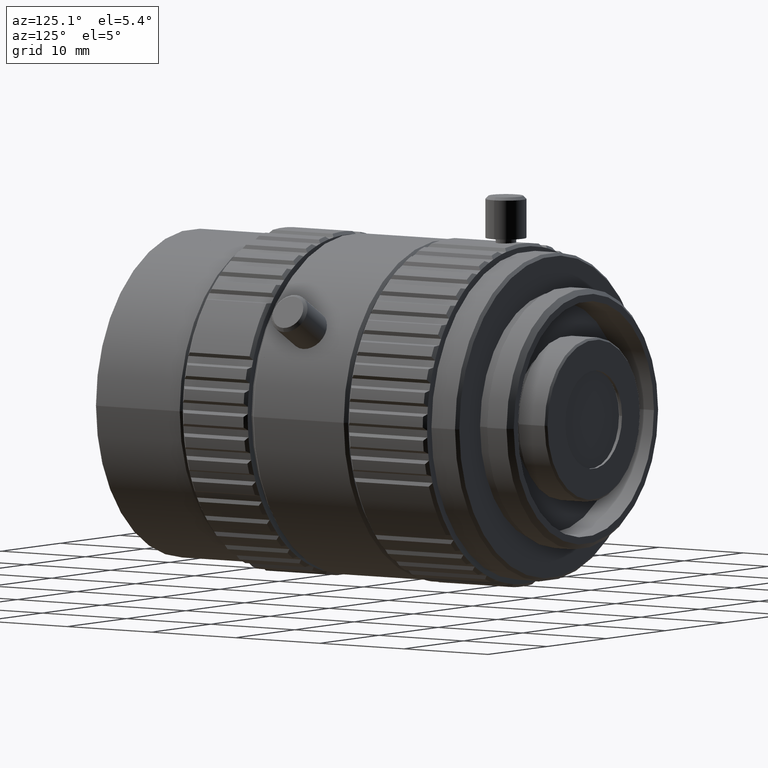
[diagram: clean part render]
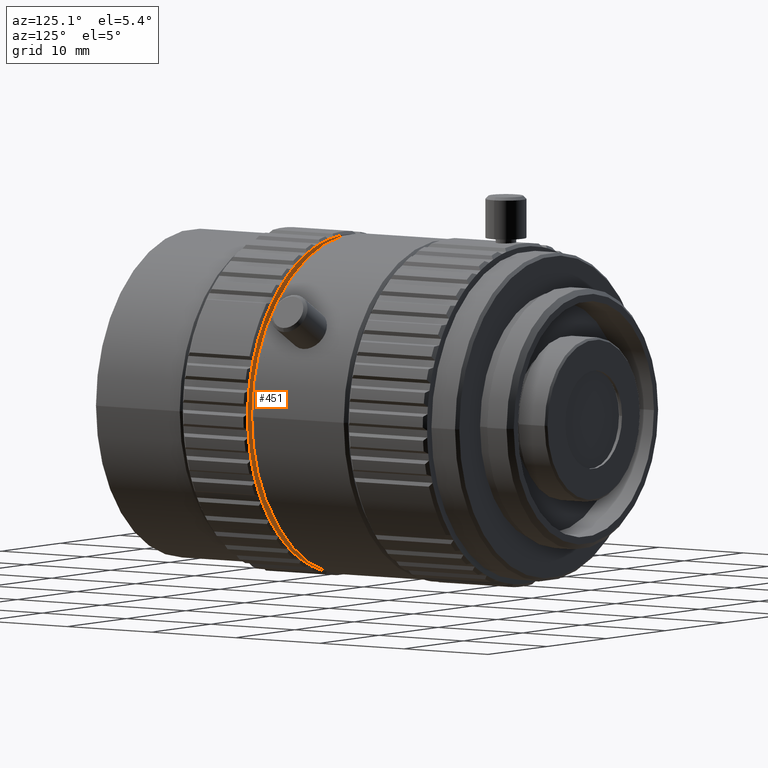
[diagram: same view with one face highlighted and labeled with its STEP entity id]
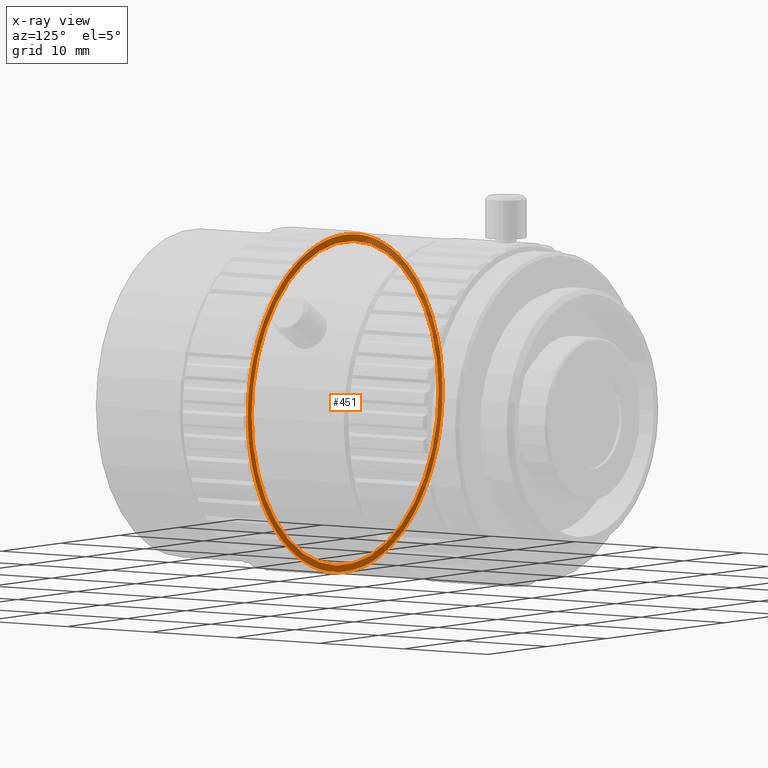
[diagram: x-ray of the same camera — body ghosted, the highlighted face saturated]
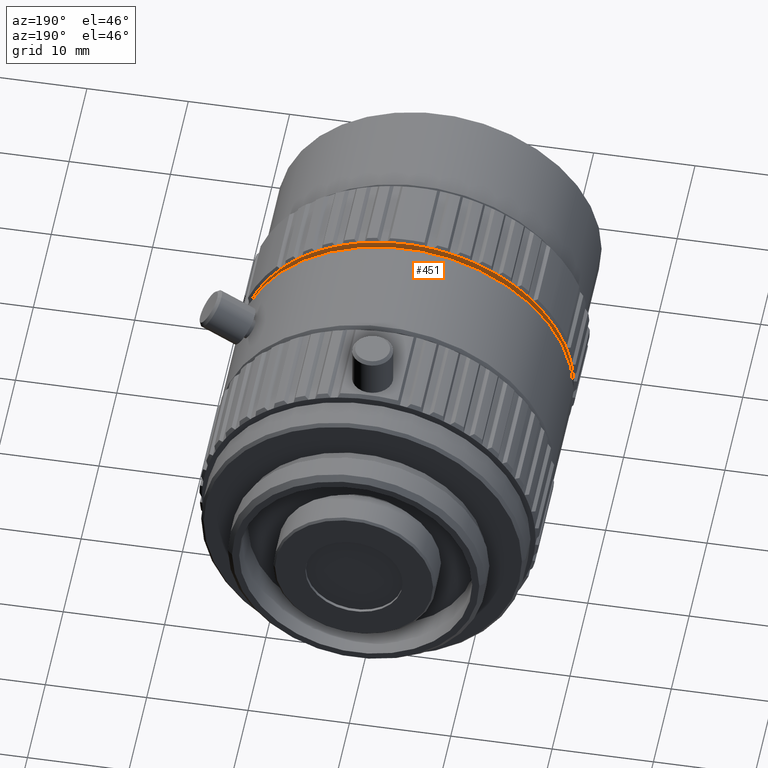
[diagram: same view with one face highlighted and labeled with its STEP entity id]
A machine part, auxiliary view. The second image highlights one B-rep face of the part: STEP entity #451.
The next image is the same camera in x-ray: the body ghosted, the highlighted face saturated — about 46% of this face is hidden behind the body in this view.
A second angle (auxiliary view) of the same face is appended — the face is thin or edge-on in the first view.
In plain terms, the highlighted planar face has unit normal (0, 1, 0).
Its self-contained STEP definition (entity closure, byte-faithful):
#451=ADVANCED_FACE('0:10863',(#1921,#1922),#1923,.T.);
#1921=FACE_OUTER_BOUND('',#4252,.T.);
#1922=FACE_BOUND('',#4253,.T.);
#1923=PLANE('',#4254);
#4252=EDGE_LOOP('',(#8254,#8255,#8256,#8257,#8258,#8259,#8260,#8261,#8262,#8263,#8264,#8265,#8266,#8267,#8268,#8269,#8270,#8271,#8272,#8273,#8274,#8275,#8276,#8277,#8278,#8279,#8280,#8281,#8282,#8283,#8284,#8285,#8286,#8287,#8288,#8289,#8290,#8291,#8292,#8293,#8294,#8295,#8296,#8297,#8298,#8299,#8300,#8301,#8302,#8303,#8304,#8305,#8306,#8307,#8308,#8309,#8310,#8311,#8312,#8313,#8314,#8315,#8316,#8317,#8318,#8319,#8320,#8321,#8322,#8323,#8324,#8325,#8326,#8327,#8328,#8329,#8330,#8331));
#4253=EDGE_LOOP('',(#8332,#8333));
#4254=AXIS2_PLACEMENT_3D('',#8334,#8335,#8336);
#8254=ORIENTED_EDGE('',*,*,#15569,.F.);
#8255=ORIENTED_EDGE('',*,*,#14572,.F.);
#8256=ORIENTED_EDGE('',*,*,#14782,.F.);
#8257=ORIENTED_EDGE('',*,*,#15570,.F.);
#8258=ORIENTED_EDGE('',*,*,#15501,.F.);
#8259=ORIENTED_EDGE('',*,*,#15571,.F.);
#8260=ORIENTED_EDGE('',*,*,#15498,.F.);
#8261=ORIENTED_EDGE('',*,*,#15572,.F.);
#8262=ORIENTED_EDGE('',*,*,#15495,.F.);
#8263=ORIENTED_EDGE('',*,*,#15573,.F.);
#8264=ORIENTED_EDGE('',*,*,#15492,.F.);
#8265=ORIENTED_EDGE('',*,*,#15574,.F.);
#8266=ORIENTED_EDGE('',*,*,#15489,.F.);
#8267=ORIENTED_EDGE('',*,*,#15575,.F.);
#8268=ORIENTED_EDGE('',*,*,#15486,.F.);
#8269=ORIENTED_EDGE('',*,*,#15576,.F.);
#8270=ORIENTED_EDGE('',*,*,#15483,.F.);
#8271=ORIENTED_EDGE('',*,*,#15577,.F.);
#8272=ORIENTED_EDGE('',*,*,#15480,.F.);
#8273=ORIENTED_EDGE('',*,*,#15578,.F.);
#8274=ORIENTED_EDGE('',*,*,#15477,.F.);
#8275=ORIENTED_EDGE('',*,*,#15579,.F.);
#8276=ORIENTED_EDGE('',*,*,#15475,.F.);
#8277=ORIENTED_EDGE('',*,*,#15580,.F.);
#8278=ORIENTED_EDGE('',*,*,#15471,.F.);
#8279=ORIENTED_EDGE('',*,*,#15581,.F.);
#8280=ORIENTED_EDGE('',*,*,#15468,.F.);
#8281=ORIENTED_EDGE('',*,*,#15582,.F.);
#8282=ORIENTED_EDGE('',*,*,#15465,.F.);
#8283=ORIENTED_EDGE('',*,*,#15583,.F.);
#8284=ORIENTED_EDGE('',*,*,#15462,.F.);
#8285=ORIENTED_EDGE('',*,*,#15584,.F.);
#8286=ORIENTED_EDGE('',*,*,#15459,.F.);
#8287=ORIENTED_EDGE('',*,*,#15585,.F.);
#8288=ORIENTED_EDGE('',*,*,#15456,.F.);
#8289=ORIENTED_EDGE('',*,*,#15586,.F.);
#8290=ORIENTED_EDGE('',*,*,#15453,.F.);
#8291=ORIENTED_EDGE('',*,*,#15587,.F.);
#8292=ORIENTED_EDGE('',*,*,#15450,.F.);
#8293=ORIENTED_EDGE('',*,*,#15588,.F.);
#8294=ORIENTED_EDGE('',*,*,#15447,.F.);
#8295=ORIENTED_EDGE('',*,*,#15589,.F.);
#8296=ORIENTED_EDGE('',*,*,#15443,.F.);
#8297=ORIENTED_EDGE('',*,*,#14544,.F.);
#8298=ORIENTED_EDGE('',*,*,#15590,.F.);
#8299=ORIENTED_EDGE('',*,*,#15441,.F.);
#8300=ORIENTED_EDGE('',*,*,#15591,.F.);
#8301=ORIENTED_EDGE('',*,*,#15438,.F.);
#8302=ORIENTED_EDGE('',*,*,#15592,.F.);
#8303=ORIENTED_EDGE('',*,*,#15436,.F.);
#8304=ORIENTED_EDGE('',*,*,#15593,.F.);
#8305=ORIENTED_EDGE('',*,*,#15432,.F.);
#8306=ORIENTED_EDGE('',*,*,#15594,.F.);
#8307=ORIENTED_EDGE('',*,*,#15429,.F.);
#8308=ORIENTED_EDGE('',*,*,#15595,.F.);
#8309=ORIENTED_EDGE('',*,*,#15426,.F.);
#8310=ORIENTED_EDGE('',*,*,#15596,.F.);
#8311=ORIENTED_EDGE('',*,*,#15423,.F.);
#8312=ORIENTED_EDGE('',*,*,#15597,.F.);
#8313=ORIENTED_EDGE('',*,*,#15420,.F.);
#8314=ORIENTED_EDGE('',*,*,#15598,.F.);
#8315=ORIENTED_EDGE('',*,*,#15417,.F.);
#8316=ORIENTED_EDGE('',*,*,#15599,.F.);
#8317=ORIENTED_EDGE('',*,*,#15414,.F.);
#8318=ORIENTED_EDGE('',*,*,#15600,.F.);
#8319=ORIENTED_EDGE('',*,*,#15567,.F.);
#8320=ORIENTED_EDGE('',*,*,#15601,.F.);
#8321=ORIENTED_EDGE('',*,*,#15519,.F.);
#8322=ORIENTED_EDGE('',*,*,#15602,.F.);
#8323=ORIENTED_EDGE('',*,*,#15516,.F.);
#8324=ORIENTED_EDGE('',*,*,#15603,.F.);
#8325=ORIENTED_EDGE('',*,*,#15513,.F.);
#8326=ORIENTED_EDGE('',*,*,#15604,.F.);
#8327=ORIENTED_EDGE('',*,*,#15511,.F.);
#8328=ORIENTED_EDGE('',*,*,#15605,.F.);
#8329=ORIENTED_EDGE('',*,*,#15507,.F.);
#8330=ORIENTED_EDGE('',*,*,#15606,.F.);
#8331=ORIENTED_EDGE('',*,*,#15504,.F.);
#8332=ORIENTED_EDGE('',*,*,#14612,.T.);
#8333=ORIENTED_EDGE('',*,*,#14763,.T.);
#8334=CARTESIAN_POINT('',(-1.50626581520152E-18,-0.042126,0.01645));
#8335=DIRECTION('',(2.29561756065156E-49,1.0,3.74915180455535E-33));
#8336=DIRECTION('',(0.0,3.74915180455535E-33,-1.0));
#14544=EDGE_CURVE('0:13830',#17139,#17137,#17141,.T.);
#14572=EDGE_CURVE('0:11799',#17194,#17197,#17198,.T.);
#14612=EDGE_CURVE('0:11754',#17265,#17269,#17271,.T.);
#14763=EDGE_CURVE('0:11754',#17269,#17265,#17516,.T.);
#14782=EDGE_CURVE('0:11799',#17536,#17194,#17538,.T.);
#15414=EDGE_CURVE('0:13740',#18679,#18681,#18682,.T.);
#15417=EDGE_CURVE('0:13749',#18684,#18686,#18687,.T.);
#15420=EDGE_CURVE('0:13758',#18689,#18691,#18692,.T.);
#15423=EDGE_CURVE('0:13767',#18694,#18696,#18697,.T.);
#15426=EDGE_CURVE('0:13776',#18699,#18701,#18702,.T.);
#15429=EDGE_CURVE('0:13785',#18704,#18706,#18707,.T.);
#15432=EDGE_CURVE('0:13794',#18709,#18711,#18712,.T.);
#15436=EDGE_CURVE('0:13806',#18716,#18714,#18718,.T.);
#15438=EDGE_CURVE('0:13812',#18719,#18721,#18722,.T.);
#15441=EDGE_CURVE('0:13821',#18724,#18726,#18727,.T.);
#15443=EDGE_CURVE('0:13830',#17137,#18729,#18730,.T.);
#15447=EDGE_CURVE('0:13839',#18733,#18735,#18736,.T.);
#15450=EDGE_CURVE('0:13848',#18738,#18740,#18741,.T.);
#15453=EDGE_CURVE('0:13857',#18743,#18745,#18746,.T.);
#15456=EDGE_CURVE('0:13866',#18748,#18750,#18751,.T.);
#15459=EDGE_CURVE('0:13875',#18753,#18755,#18756,.T.);
#15462=EDGE_CURVE('0:13884',#18758,#18760,#18761,.T.);
#15465=EDGE_CURVE('0:13893',#18763,#18765,#18766,.T.);
#15468=EDGE_CURVE('0:13902',#18768,#18770,#18771,.T.);
#15471=EDGE_CURVE('0:13911',#18773,#18775,#18776,.T.);
#15475=EDGE_CURVE('0:13923',#18780,#18778,#18782,.T.);
#15477=EDGE_CURVE('0:13929',#18783,#18785,#18786,.T.);
#15480=EDGE_CURVE('0:13938',#18788,#18790,#18791,.T.);
#15483=EDGE_CURVE('0:13947',#18793,#18795,#18796,.T.);
#15486=EDGE_CURVE('0:13956',#18798,#18800,#18801,.T.);
#15489=EDGE_CURVE('0:13965',#18803,#18805,#18806,.T.);
#15492=EDGE_CURVE('0:13974',#18808,#18810,#18811,.T.);
#15495=EDGE_CURVE('0:13983',#18813,#18815,#18816,.T.);
#15498=EDGE_CURVE('0:13992',#18818,#18820,#18821,.T.);
#15501=EDGE_CURVE('0:14001',#18823,#18825,#18826,.T.);
#15504=EDGE_CURVE('0:14010',#18828,#18830,#18831,.T.);
#15507=EDGE_CURVE('0:14019',#18833,#18835,#18836,.T.);
#15511=EDGE_CURVE('0:14031',#18840,#18838,#18842,.T.);
#15513=EDGE_CURVE('0:14037',#18843,#18845,#18846,.T.);
#15516=EDGE_CURVE('0:14046',#18848,#18850,#18851,.T.);
#15519=EDGE_CURVE('0:14055',#18853,#18855,#18856,.T.);
#15567=EDGE_CURVE('0:14199',#18909,#18911,#18912,.T.);
#15569=EDGE_CURVE('0:14205',#17197,#18828,#18914,.T.);
#15570=EDGE_CURVE('0:14208',#18825,#17536,#18915,.T.);
#15571=EDGE_CURVE('0:14211',#18820,#18823,#18916,.T.);
#15572=EDGE_CURVE('0:14214',#18815,#18818,#18917,.T.);
#15573=EDGE_CURVE('0:14217',#18810,#18813,#18918,.T.);
#15574=EDGE_CURVE('0:14220',#18805,#18808,#18919,.T.);
#15575=EDGE_CURVE('0:14223',#18800,#18803,#18920,.T.);
#15576=EDGE_CURVE('0:14226',#18795,#18798,#18921,.T.);
#15577=EDGE_CURVE('0:14229',#18790,#18793,#18922,.T.);
#15578=EDGE_CURVE('0:14232',#18785,#18788,#18923,.T.);
#15579=EDGE_CURVE('0:14235',#18778,#18783,#18924,.T.);
#15580=EDGE_CURVE('0:14238',#18775,#18780,#18925,.T.);
#15581=EDGE_CURVE('0:14241',#18770,#18773,#18926,.T.);
#15582=EDGE_CURVE('0:14244',#18765,#18768,#18927,.T.);
#15583=EDGE_CURVE('0:14247',#18760,#18763,#18928,.T.);
#15584=EDGE_CURVE('0:14250',#18755,#18758,#18929,.T.);
#15585=EDGE_CURVE('0:14253',#18750,#18753,#18930,.T.);
#15586=EDGE_CURVE('0:14256',#18745,#18748,#18931,.T.);
#15587=EDGE_CURVE('0:14259',#18740,#18743,#18932,.T.);
#15588=EDGE_CURVE('0:14262',#18735,#18738,#18933,.T.);
#15589=EDGE_CURVE('0:14265',#18729,#18733,#18934,.T.);
#15590=EDGE_CURVE('0:14268',#18726,#17139,#18935,.T.);
#15591=EDGE_CURVE('0:14271',#18721,#18724,#18936,.T.);
#15592=EDGE_CURVE('0:14274',#18714,#18719,#18937,.T.);
#15593=EDGE_CURVE('0:14277',#18711,#18716,#18938,.T.);
#15594=EDGE_CURVE('0:14280',#18706,#18709,#18939,.T.);
#15595=EDGE_CURVE('0:14283',#18701,#18704,#18940,.T.);
#15596=EDGE_CURVE('0:14286',#18696,#18699,#18941,.T.);
#15597=EDGE_CURVE('0:14289',#18691,#18694,#18942,.T.);
#15598=EDGE_CURVE('0:14292',#18686,#18689,#18943,.T.);
#15599=EDGE_CURVE('0:14295',#18681,#18684,#18944,.T.);
#15600=EDGE_CURVE('0:14298',#18911,#18679,#18945,.T.);
#15601=EDGE_CURVE('0:14301',#18855,#18909,#18946,.T.);
#15602=EDGE_CURVE('0:14304',#18850,#18853,#18947,.T.);
#15603=EDGE_CURVE('0:14307',#18845,#18848,#18948,.T.);
#15604=EDGE_CURVE('0:14310',#18838,#18843,#18949,.T.);
#15605=EDGE_CURVE('0:14313',#18835,#18840,#18950,.T.);
#15606=EDGE_CURVE('0:14316',#18830,#18833,#18951,.T.);
#17137=VERTEX_POINT('',#21233);
#17139=VERTEX_POINT('NONE',#21236);
#17141=CIRCLE('',#21238,0.01645);
#17194=VERTEX_POINT('',#21303);
#17197=VERTEX_POINT('NONE',#21307);
#17198=CIRCLE('',#21308,0.01645);
#17265=VERTEX_POINT('NONE',#21395);
#17269=VERTEX_POINT('',#21400);
#17271=CIRCLE('',#21403,0.0158);
#17516=CIRCLE('',#21830,0.0158);
#17536=VERTEX_POINT('NONE',#21853);
#17538=CIRCLE('',#21855,0.01645);
#18679=VERTEX_POINT('NONE',#23149);
#18681=VERTEX_POINT('NONE',#23151);
#18682=CIRCLE('',#23152,0.01645);
#18684=VERTEX_POINT('NONE',#23154);
#18686=VERTEX_POINT('NONE',#23156);
#18687=CIRCLE('',#23157,0.01645);
#18689=VERTEX_POINT('NONE',#23159);
#18691=VERTEX_POINT('NONE',#23161);
#18692=CIRCLE('',#23162,0.01645);
#18694=VERTEX_POINT('NONE',#23164);
#18696=VERTEX_POINT('NONE',#23166);
#18697=CIRCLE('',#23167,0.01645);
#18699=VERTEX_POINT('NONE',#23169);
#18701=VERTEX_POINT('NONE',#23171);
#18702=CIRCLE('',#23172,0.01645);
#18704=VERTEX_POINT('NONE',#23174);
#18706=VERTEX_POINT('NONE',#23176);
#18707=CIRCLE('',#23177,0.01645);
#18709=VERTEX_POINT('NONE',#23179);
#18711=VERTEX_POINT('NONE',#23181);
#18712=CIRCLE('',#23182,0.01645);
#18714=VERTEX_POINT('NONE',#23184);
#18716=VERTEX_POINT('NONE',#23186);
#18718=CIRCLE('',#23188,0.01645);
#18719=VERTEX_POINT('NONE',#23189);
#18721=VERTEX_POINT('NONE',#23191);
#18722=CIRCLE('',#23192,0.01645);
#18724=VERTEX_POINT('NONE',#23194);
#18726=VERTEX_POINT('NONE',#23196);
#18727=CIRCLE('',#23197,0.01645);
#18729=VERTEX_POINT('NONE',#23199);
#18730=CIRCLE('',#23200,0.01645);
#18733=VERTEX_POINT('NONE',#23203);
#18735=VERTEX_POINT('NONE',#23205);
#18736=CIRCLE('',#23206,0.01645);
#18738=VERTEX_POINT('NONE',#23208);
#18740=VERTEX_POINT('NONE',#23210);
#18741=CIRCLE('',#23211,0.01645);
#18743=VERTEX_POINT('NONE',#23213);
#18745=VERTEX_POINT('NONE',#23215);
#18746=CIRCLE('',#23216,0.01645);
#18748=VERTEX_POINT('NONE',#23218);
#18750=VERTEX_POINT('NONE',#23220);
#18751=CIRCLE('',#23221,0.01645);
#18753=VERTEX_POINT('NONE',#23223);
#18755=VERTEX_POINT('NONE',#23225);
#18756=CIRCLE('',#23226,0.01645);
#18758=VERTEX_POINT('NONE',#23228);
#18760=VERTEX_POINT('NONE',#23230);
#18761=CIRCLE('',#23231,0.01645);
#18763=VERTEX_POINT('NONE',#23233);
#18765=VERTEX_POINT('NONE',#23235);
#18766=CIRCLE('',#23236,0.01645);
#18768=VERTEX_POINT('NONE',#23238);
#18770=VERTEX_POINT('NONE',#23240);
#18771=CIRCLE('',#23241,0.01645);
#18773=VERTEX_POINT('NONE',#23243);
#18775=VERTEX_POINT('NONE',#23245);
#18776=CIRCLE('',#23246,0.01645);
#18778=VERTEX_POINT('NONE',#23248);
#18780=VERTEX_POINT('NONE',#23250);
#18782=CIRCLE('',#23252,0.01645);
#18783=VERTEX_POINT('NONE',#23253);
#18785=VERTEX_POINT('NONE',#23255);
#18786=CIRCLE('',#23256,0.01645);
#18788=VERTEX_POINT('NONE',#23258);
#18790=VERTEX_POINT('NONE',#23260);
#18791=CIRCLE('',#23261,0.01645);
#18793=VERTEX_POINT('NONE',#23263);
#18795=VERTEX_POINT('NONE',#23265);
#18796=CIRCLE('',#23266,0.01645);
#18798=VERTEX_POINT('NONE',#23268);
#18800=VERTEX_POINT('NONE',#23270);
#18801=CIRCLE('',#23271,0.01645);
#18803=VERTEX_POINT('NONE',#23273);
#18805=VERTEX_POINT('NONE',#23275);
#18806=CIRCLE('',#23276,0.01645);
#18808=VERTEX_POINT('NONE',#23278);
#18810=VERTEX_POINT('NONE',#23280);
#18811=CIRCLE('',#23281,0.01645);
#18813=VERTEX_POINT('NONE',#23283);
#18815=VERTEX_POINT('NONE',#23285);
#18816=CIRCLE('',#23286,0.01645);
#18818=VERTEX_POINT('NONE',#23288);
#18820=VERTEX_POINT('NONE',#23290);
#18821=CIRCLE('',#23291,0.01645);
#18823=VERTEX_POINT('NONE',#23293);
#18825=VERTEX_POINT('NONE',#23295);
#18826=CIRCLE('',#23296,0.01645);
#18828=VERTEX_POINT('NONE',#23298);
#18830=VERTEX_POINT('NONE',#23300);
#18831=CIRCLE('',#23301,0.01645);
#18833=VERTEX_POINT('NONE',#23303);
#18835=VERTEX_POINT('NONE',#23305);
#18836=CIRCLE('',#23306,0.01645);
#18838=VERTEX_POINT('NONE',#23308);
#18840=VERTEX_POINT('NONE',#23310);
#18842=CIRCLE('',#23312,0.01645);
#18843=VERTEX_POINT('NONE',#23313);
#18845=VERTEX_POINT('NONE',#23315);
#18846=CIRCLE('',#23316,0.01645);
#18848=VERTEX_POINT('NONE',#23318);
#18850=VERTEX_POINT('NONE',#23320);
#18851=CIRCLE('',#23321,0.01645);
#18853=VERTEX_POINT('NONE',#23323);
#18855=VERTEX_POINT('NONE',#23325);
#18856=CIRCLE('',#23326,0.01645);
#18909=VERTEX_POINT('NONE',#23381);
#18911=VERTEX_POINT('NONE',#23383);
#18912=CIRCLE('',#23384,0.01645);
#18914=CIRCLE('',#23386,0.01645);
#18915=CIRCLE('',#23387,0.01645);
#18916=CIRCLE('',#23388,0.01645);
#18917=CIRCLE('',#23389,0.01645);
#18918=CIRCLE('',#23390,0.01645);
#18919=CIRCLE('',#23391,0.01645);
#18920=CIRCLE('',#23392,0.01645);
#18921=CIRCLE('',#23393,0.01645);
#18922=CIRCLE('',#23394,0.01645);
#18923=CIRCLE('',#23395,0.01645);
#18924=CIRCLE('',#23396,0.01645);
#18925=CIRCLE('',#23397,0.01645);
#18926=CIRCLE('',#23398,0.01645);
#18927=CIRCLE('',#23399,0.01645);
#18928=CIRCLE('',#23400,0.01645);
#18929=CIRCLE('',#23401,0.01645);
#18930=CIRCLE('',#23402,0.01645);
#18931=CIRCLE('',#23403,0.01645);
#18932=CIRCLE('',#23404,0.01645);
#18933=CIRCLE('',#23405,0.01645);
#18934=CIRCLE('',#23406,0.01645);
#18935=CIRCLE('',#23407,0.01645);
#18936=CIRCLE('',#23408,0.01645);
#18937=CIRCLE('',#23409,0.01645);
#18938=CIRCLE('',#23410,0.01645);
#18939=CIRCLE('',#23411,0.01645);
#18940=CIRCLE('',#23412,0.01645);
#18941=CIRCLE('',#23413,0.01645);
#18942=CIRCLE('',#23414,0.01645);
#18943=CIRCLE('',#23415,0.01645);
#18944=CIRCLE('',#23416,0.01645);
#18945=CIRCLE('',#23417,0.01645);
#18946=CIRCLE('',#23418,0.01645);
#18947=CIRCLE('',#23419,0.01645);
#18948=CIRCLE('',#23420,0.01645);
#18949=CIRCLE('',#23421,0.01645);
#18950=CIRCLE('',#23422,0.01645);
#18951=CIRCLE('',#23423,0.01645);
#21233=CARTESIAN_POINT('',(-0.01645,-0.042126,-5.02921221614859E-17));
#21236=CARTESIAN_POINT('',(-0.0164484723710231,-0.042126,0.000224179971655247));
#21238=AXIS2_PLACEMENT_3D('',#26381,#26382,#26383);
#21303=CARTESIAN_POINT('',(0.01645,-0.042126,-4.62024841501512E-17));
#21307=CARTESIAN_POINT('',(0.0164484707350975,-0.042126,0.000224299970218646));
#21308=AXIS2_PLACEMENT_3D('',#26445,#26446,#26447);
#21395=CARTESIAN_POINT('',(0.0158,-0.042126,-4.8216096913689E-17));
#21400=CARTESIAN_POINT('',(-0.0158,-0.042126,-5.01510388563418E-17));
#21403=AXIS2_PLACEMENT_3D('',#26521,#26522,#26523);
#21830=AXIS2_PLACEMENT_3D('',#26850,#26851,#26852);
#21853=CARTESIAN_POINT('',(0.0163927667147179,-0.042126,-0.0013710213115917));
#21855=AXIS2_PLACEMENT_3D('',#26904,#26905,#26906);
#23149=CARTESIAN_POINT('',(0.00419676648413038,-0.042126,0.0159056484016742));
#23151=CARTESIAN_POINT('',(0.00263535461888581,-0.042126,0.0162375307861977));
#23152=AXIS2_PLACEMENT_3D('',#28497,#28498,#28499);
#23154=CARTESIAN_POINT('',(0.00194228543035764,-0.042126,0.01633493273041));
#23156=CARTESIAN_POINT('',(-0.00194240460055556,-0.042126,0.0163349185601809));
#23157=AXIS2_PLACEMENT_3D('',#28506,#28507,#28508);
#23159=CARTESIAN_POINT('',(-0.00263547307847692,-0.042126,0.016237511559738));
#23161=CARTESIAN_POINT('',(-0.00419688252245741,-0.042126,0.0159056177840627));
#23162=AXIS2_PLACEMENT_3D('',#28515,#28516,#28517);
#23164=CARTESIAN_POINT('',(-0.00486964967128738,-0.042126,0.0157127022526022));
#23166=CARTESIAN_POINT('',(-0.0063696728999427,-0.042126,0.0151667322501498));
#23167=AXIS2_PLACEMENT_3D('',#28524,#28525,#28526);
#23169=CARTESIAN_POINT('',(-0.00700904407239063,-0.042126,0.0148820630690535));
#23171=CARTESIAN_POINT('',(-0.00841848483982617,-0.042126,0.0141326435248901));
#23172=AXIS2_PLACEMENT_3D('',#28533,#28534,#28535);
#23174=CARTESIAN_POINT('',(-0.00901201540329425,-0.042126,0.0137617614559615));
#23176=CARTESIAN_POINT('',(-0.010303440548187,-0.042126,0.012823478969062));
#23177=AXIS2_PLACEMENT_3D('',#28542,#28543,#28544);
#23179=CARTESIAN_POINT('',(-0.0108395781053884,-0.042126,0.0123736028099008));
#23181=CARTESIAN_POINT('',(-0.0119878515062672,-0.042126,0.0112647199815924));
#23182=AXIS2_PLACEMENT_3D('',#28551,#28552,#28553);
#23184=CARTESIAN_POINT('',(-0.0155332216809462,-0.042126,0.00541493529144924));
#23186=CARTESIAN_POINT('',(-0.0124561607494984,-0.042126,0.0107446060599101));
#23188=AXIS2_PLACEMENT_3D('',#28563,#28564,#28565);
#23189=CARTESIAN_POINT('',(-0.01574949407235,-0.042126,0.0047493090513265));
#23191=CARTESIAN_POINT('',(-0.0161356667713344,-0.042126,0.00320043088418662));
#23192=AXIS2_PLACEMENT_3D('',#28569,#28570,#28571);
#23194=CARTESIAN_POINT('',(-0.0162571971467737,-0.042126,0.00251118317351282));
#23196=CARTESIAN_POINT('',(-0.0164240494620675,-0.042126,0.00092363373019947));
#23197=AXIS2_PLACEMENT_3D('',#28578,#28579,#28580);
#23199=CARTESIAN_POINT('',(-0.0163927567121007,-0.042126,-0.00137114090372822));
#23200=AXIS2_PLACEMENT_3D('',#28584,#28585,#28586);
#23203=CARTESIAN_POINT('',(-0.0163195967904305,-0.042126,-0.00206718663834968));
#23205=CARTESIAN_POINT('',(-0.0160423975992173,-0.042126,-0.0036392278396145));
#23206=AXIS2_PLACEMENT_3D('',#28596,#28597,#28598);
#23208=CARTESIAN_POINT('',(-0.0158730788215784,-0.042126,-0.00431831781182905));
#23210=CARTESIAN_POINT('',(-0.015379791465022,-0.042126,-0.00583648134516299));
#23211=AXIS2_PLACEMENT_3D('',#28605,#28606,#28607);
#23213=CARTESIAN_POINT('',(-0.0151176094288238,-0.042126,-0.00648539784111487));
#23215=CARTESIAN_POINT('',(-0.0144178351842135,-0.042126,-0.00792013438022702));
#23216=AXIS2_PLACEMENT_3D('',#28614,#28615,#28616);
#23218=CARTESIAN_POINT('',(-0.0140678929645631,-0.042126,-0.0085262469784541));
#23220=CARTESIAN_POINT('',(-0.0131752521415888,-0.042126,-0.00984963100859926));
#23221=AXIS2_PLACEMENT_3D('',#28623,#28624,#28625);
#23223=CARTESIAN_POINT('',(-0.0127443609657381,-0.042126,-0.0104011424168199));
#23225=CARTESIAN_POINT('',(-0.0116762278026552,-0.042126,-0.0115874157731783));
#23226=AXIS2_PLACEMENT_3D('',#28632,#28633,#28634);
#23228=CARTESIAN_POINT('',(-0.0111727744772109,-0.042126,-0.0120735914491665));
#23230=CARTESIAN_POINT('',(-0.00994993897105517,-0.042126,-0.0130996646702226));
#23231=AXIS2_PLACEMENT_3D('',#28641,#28642,#28643);
#23233=CARTESIAN_POINT('',(-0.00938372264232727,-0.042126,-0.0135110417574617));
#23235=CARTESIAN_POINT('',(-0.00802998589527142,-0.042126,-0.0143569434951086));
#23236=AXIS2_PLACEMENT_3D('',#28650,#28651,#28652);
#23238=CARTESIAN_POINT('',(-0.0074120273200371,-0.042126,-0.0146855150065302));
#23240=CARTESIAN_POINT('',(-0.00595373827800977,-0.042126,-0.0153347807456436));
#23241=AXIS2_PLACEMENT_3D('',#28659,#28660,#28661);
#23243=CARTESIAN_POINT('',(-0.00529606531701852,-0.042126,-0.0155741514105223));
#23245=CARTESIAN_POINT('',(-0.00376160791744357,-0.042126,-0.0160141439320191));
#23246=AXIS2_PLACEMENT_3D('',#28668,#28669,#28670);
#23248=CARTESIAN_POINT('',(0.0030771393182292,-0.042126,-0.0161596322240392));
#23250=CARTESIAN_POINT('',(-0.00307702142678916,-0.042126,-0.0161596546726432));
#23252=AXIS2_PLACEMENT_3D('',#28680,#28681,#28682);
#23253=CARTESIAN_POINT('',(0.00376172474730293,-0.042126,-0.0160141164890708));
#23255=CARTESIAN_POINT('',(0.00529617893690533,-0.042126,-0.0155741127730693));
#23256=AXIS2_PLACEMENT_3D('',#28686,#28687,#28688);
#23258=CARTESIAN_POINT('',(0.00595385015156875,-0.042126,-0.0153347373101943));
#23260=CARTESIAN_POINT('',(0.00741213445688885,-0.042126,-0.0146854609322622));
#23261=AXIS2_PLACEMENT_3D('',#28695,#28696,#28697);
#23263=CARTESIAN_POINT('',(0.00803009063503845,-0.042126,-0.01435688491258));
#23265=CARTESIAN_POINT('',(0.00938382121084701,-0.042126,-0.0135109732988729));
#23266=AXIS2_PLACEMENT_3D('',#28704,#28705,#28706);
#23268=CARTESIAN_POINT('',(0.00995003453838984,-0.042126,-0.0130995920808569));
#23270=CARTESIAN_POINT('',(0.0111728625588744,-0.042126,-0.0120735099387254));
#23271=AXIS2_PLACEMENT_3D('',#28713,#28714,#28715);
#23273=CARTESIAN_POINT('',(0.011676312337448,-0.042126,-0.0115873305898451));
#23275=CARTESIAN_POINT('',(0.0127444368461362,-0.042126,-0.0104010494410346));
#23276=AXIS2_PLACEMENT_3D('',#28722,#28723,#28724);
#23278=CARTESIAN_POINT('',(0.0131753239984662,-0.042126,-0.0098495348892951));
#23280=CARTESIAN_POINT('',(0.0140679551667699,-0.042126,-0.00852614434699243));
#23281=AXIS2_PLACEMENT_3D('',#28731,#28732,#28733);
#23283=CARTESIAN_POINT('',(0.0144178929645631,-0.042126,-0.00792002919580487));
#23285=CARTESIAN_POINT('',(0.0151176567421443,-0.042126,-0.0064852875515815));
#23286=AXIS2_PLACEMENT_3D('',#28740,#28741,#28742);
#23288=CARTESIAN_POINT('',(0.015379834044215,-0.042126,-0.00583636914291797));
#23290=CARTESIAN_POINT('',(0.0158731103251125,-0.042126,-0.0043182020108843));
#23291=AXIS2_PLACEMENT_3D('',#28749,#28750,#28751);
#23293=CARTESIAN_POINT('',(0.0160424241484982,-0.042126,-0.0036391108034357));
#23295=CARTESIAN_POINT('',(0.0163196118709978,-0.042126,-0.00206706757992721));
#23296=AXIS2_PLACEMENT_3D('',#28758,#28759,#28760);
#23298=CARTESIAN_POINT('',(0.0164240427233313,-0.042126,0.000923753550568762));
#23300=CARTESIAN_POINT('',(0.0162571788261967,-0.042126,0.00251130177658161));
#23301=AXIS2_PLACEMENT_3D('',#28767,#28768,#28769);
#23303=CARTESIAN_POINT('',(0.0161356434224068,-0.042126,0.00320054860062152));
#23305=CARTESIAN_POINT('',(0.0157494594237108,-0.042126,0.00474942395042686));
#23306=AXIS2_PLACEMENT_3D('',#28776,#28777,#28778);
#23308=CARTESIAN_POINT('',(0.012456082362717,-0.042126,0.0107446969325901));
#23310=CARTESIAN_POINT('',(0.0155331821762875,-0.042126,0.00541504861273325));
#23312=AXIS2_PLACEMENT_3D('',#28788,#28789,#28790);
#23313=CARTESIAN_POINT('',(0.0119877693250471,-0.042126,0.0112648074377444));
#23315=CARTESIAN_POINT('',(0.010839487834429,-0.042126,0.0123736818888828));
#23316=AXIS2_PLACEMENT_3D('',#28794,#28795,#28796);
#23318=CARTESIAN_POINT('',(0.0103033469952049,-0.042126,0.0128235541366815));
#23320=CARTESIAN_POINT('',(0.00901191500517856,-0.042126,0.0137618272020629));
#23321=AXIS2_PLACEMENT_3D('',#28803,#28804,#28805);
#23323=CARTESIAN_POINT('',(0.00841838173598459,-0.042126,0.0141327049409248));
#23325=CARTESIAN_POINT('',(0.0070089355012537,-0.042126,0.0148821142026012));
#23326=AXIS2_PLACEMENT_3D('',#28812,#28813,#28814);
#23381=CARTESIAN_POINT('',(0.00636956225204063,-0.042126,0.0151667787192066));
#23383=CARTESIAN_POINT('',(0.00486953504034289,-0.042126,0.01571273777834));
#23384=AXIS2_PLACEMENT_3D('',#28952,#28953,#28954);
#23386=AXIS2_PLACEMENT_3D('',#28958,#28959,#28960);
#23387=AXIS2_PLACEMENT_3D('',#28961,#28962,#28963);
#23388=AXIS2_PLACEMENT_3D('',#28964,#28965,#28966);
#23389=AXIS2_PLACEMENT_3D('',#28967,#28968,#28969);
#23390=AXIS2_PLACEMENT_3D('',#28970,#28971,#28972);
#23391=AXIS2_PLACEMENT_3D('',#28973,#28974,#28975);
#23392=AXIS2_PLACEMENT_3D('',#28976,#28977,#28978);
#23393=AXIS2_PLACEMENT_3D('',#28979,#28980,#28981);
#23394=AXIS2_PLACEMENT_3D('',#28982,#28983,#28984);
#23395=AXIS2_PLACEMENT_3D('',#28985,#28986,#28987);
#23396=AXIS2_PLACEMENT_3D('',#28988,#28989,#28990);
#23397=AXIS2_PLACEMENT_3D('',#28991,#28992,#28993);
#23398=AXIS2_PLACEMENT_3D('',#28994,#28995,#28996);
#23399=AXIS2_PLACEMENT_3D('',#28997,#28998,#28999);
#23400=AXIS2_PLACEMENT_3D('',#29000,#29001,#29002);
#23401=AXIS2_PLACEMENT_3D('',#29003,#29004,#29005);
#23402=AXIS2_PLACEMENT_3D('',#29006,#29007,#29008);
#23403=AXIS2_PLACEMENT_3D('',#29009,#29010,#29011);
#23404=AXIS2_PLACEMENT_3D('',#29012,#29013,#29014);
#23405=AXIS2_PLACEMENT_3D('',#29015,#29016,#29017);
#23406=AXIS2_PLACEMENT_3D('',#29018,#29019,#29020);
#23407=AXIS2_PLACEMENT_3D('',#29021,#29022,#29023);
#23408=AXIS2_PLACEMENT_3D('',#29024,#29025,#29026);
#23409=AXIS2_PLACEMENT_3D('',#29027,#29028,#29029);
#23410=AXIS2_PLACEMENT_3D('',#29030,#29031,#29032);
#23411=AXIS2_PLACEMENT_3D('',#29033,#29034,#29035);
#23412=AXIS2_PLACEMENT_3D('',#29036,#29037,#29038);
#23413=AXIS2_PLACEMENT_3D('',#29039,#29040,#29041);
#23414=AXIS2_PLACEMENT_3D('',#29042,#29043,#29044);
#23415=AXIS2_PLACEMENT_3D('',#29045,#29046,#29047);
#23416=AXIS2_PLACEMENT_3D('',#29048,#29049,#29050);
#23417=AXIS2_PLACEMENT_3D('',#29051,#29052,#29053);
#23418=AXIS2_PLACEMENT_3D('',#29054,#29055,#29056);
#23419=AXIS2_PLACEMENT_3D('',#29057,#29058,#29059);
#23420=AXIS2_PLACEMENT_3D('',#29060,#29061,#29062);
#23421=AXIS2_PLACEMENT_3D('',#29063,#29064,#29065);
#23422=AXIS2_PLACEMENT_3D('',#29066,#29067,#29068);
#23423=AXIS2_PLACEMENT_3D('',#29069,#29070,#29071);
#26381=CARTESIAN_POINT('',(-1.50626581520152E-18,-0.042126,-4.8216096913689E-17));
#26382=DIRECTION('',(0.0,-1.0,0.0));
#26383=DIRECTION('',(1.0,0.0,0.0));
#26445=CARTESIAN_POINT('',(-1.50626581520152E-18,-0.042126,-4.8216096913689E-17));
#26446=DIRECTION('',(0.0,-1.0,0.0));
#26447=DIRECTION('',(1.0,0.0,0.0));
#26521=CARTESIAN_POINT('',(-1.50626581520152E-18,-0.042126,-4.8216096913689E-17));
#26522=DIRECTION('',(0.0,-1.0,0.0));
#26523=DIRECTION('',(1.0,0.0,0.0));
#26850=CARTESIAN_POINT('',(-1.50626581520152E-18,-0.042126,-4.8216096913689E-17));
#26851=DIRECTION('',(0.0,-1.0,0.0));
#26852=DIRECTION('',(1.0,0.0,0.0));
#26904=CARTESIAN_POINT('',(-1.50626581520152E-18,-0.042126,-4.8216096913689E-17));
#26905=DIRECTION('',(0.0,-1.0,0.0));
#26906=DIRECTION('',(1.0,0.0,0.0));
#28497=CARTESIAN_POINT('',(-1.50626581520152E-18,-0.042126,-4.8216096913689E-17));
#28498=DIRECTION('',(0.0,-1.0,0.0));
#28499=DIRECTION('',(1.0,0.0,0.0));
#28506=CARTESIAN_POINT('',(-1.50626581520152E-18,-0.042126,-4.8216096913689E-17));
#28507=DIRECTION('',(0.0,-1.0,0.0));
#28508=DIRECTION('',(1.0,0.0,0.0));
#28515=CARTESIAN_POINT('',(-1.50626581520152E-18,-0.042126,-4.8216096913689E-17));
#28516=DIRECTION('',(0.0,-1.0,0.0));
#28517=DIRECTION('',(1.0,0.0,0.0));
#28524=CARTESIAN_POINT('',(-1.50626581520152E-18,-0.042126,-4.8216096913689E-17));
#28525=DIRECTION('',(0.0,-1.0,0.0));
#28526=DIRECTION('',(1.0,0.0,0.0));
#28533=CARTESIAN_POINT('',(-1.50626581520152E-18,-0.042126,-4.8216096913689E-17));
#28534=DIRECTION('',(0.0,-1.0,0.0));
#28535=DIRECTION('',(1.0,0.0,0.0));
#28542=CARTESIAN_POINT('',(-1.50626581520152E-18,-0.042126,-4.8216096913689E-17));
#28543=DIRECTION('',(0.0,-1.0,0.0));
#28544=DIRECTION('',(1.0,0.0,0.0));
#28551=CARTESIAN_POINT('',(-1.50626581520152E-18,-0.042126,-4.8216096913689E-17));
#28552=DIRECTION('',(0.0,-1.0,0.0));
#28553=DIRECTION('',(1.0,0.0,0.0));
#28563=CARTESIAN_POINT('',(-1.50626581520152E-18,-0.042126,-4.8216096913689E-17));
#28564=DIRECTION('',(0.0,-1.0,0.0));
#28565=DIRECTION('',(1.0,0.0,0.0));
#28569=CARTESIAN_POINT('',(-1.50626581520152E-18,-0.042126,-4.8216096913689E-17));
#28570=DIRECTION('',(0.0,-1.0,0.0));
#28571=DIRECTION('',(1.0,0.0,0.0));
#28578=CARTESIAN_POINT('',(-1.50626581520152E-18,-0.042126,-4.8216096913689E-17));
#28579=DIRECTION('',(0.0,-1.0,0.0));
#28580=DIRECTION('',(1.0,0.0,0.0));
#28584=CARTESIAN_POINT('',(-1.50626581520152E-18,-0.042126,-4.8216096913689E-17));
#28585=DIRECTION('',(0.0,-1.0,0.0));
#28586=DIRECTION('',(1.0,0.0,0.0));
#28596=CARTESIAN_POINT('',(-1.50626581520152E-18,-0.042126,-4.8216096913689E-17));
#28597=DIRECTION('',(0.0,-1.0,0.0));
#28598=DIRECTION('',(1.0,0.0,0.0));
#28605=CARTESIAN_POINT('',(-1.50626581520152E-18,-0.042126,-4.8216096913689E-17));
#28606=DIRECTION('',(0.0,-1.0,0.0));
#28607=DIRECTION('',(1.0,0.0,0.0));
#28614=CARTESIAN_POINT('',(-1.50626581520152E-18,-0.042126,-4.8216096913689E-17));
#28615=DIRECTION('',(0.0,-1.0,0.0));
#28616=DIRECTION('',(1.0,0.0,0.0));
#28623=CARTESIAN_POINT('',(-1.50626581520152E-18,-0.042126,-4.8216096913689E-17));
#28624=DIRECTION('',(0.0,-1.0,0.0));
#28625=DIRECTION('',(1.0,0.0,0.0));
#28632=CARTESIAN_POINT('',(-1.50626581520152E-18,-0.042126,-4.8216096913689E-17));
#28633=DIRECTION('',(0.0,-1.0,0.0));
#28634=DIRECTION('',(1.0,0.0,0.0));
#28641=CARTESIAN_POINT('',(-1.50626581520152E-18,-0.042126,-4.8216096913689E-17));
#28642=DIRECTION('',(0.0,-1.0,0.0));
#28643=DIRECTION('',(1.0,0.0,0.0));
#28650=CARTESIAN_POINT('',(-1.50626581520152E-18,-0.042126,-4.8216096913689E-17));
#28651=DIRECTION('',(0.0,-1.0,0.0));
#28652=DIRECTION('',(1.0,0.0,0.0));
#28659=CARTESIAN_POINT('',(-1.50626581520152E-18,-0.042126,-4.8216096913689E-17));
#28660=DIRECTION('',(0.0,-1.0,0.0));
#28661=DIRECTION('',(1.0,0.0,0.0));
#28668=CARTESIAN_POINT('',(-1.50626581520152E-18,-0.042126,-4.8216096913689E-17));
#28669=DIRECTION('',(0.0,-1.0,0.0));
#28670=DIRECTION('',(1.0,0.0,0.0));
#28680=CARTESIAN_POINT('',(-1.50626581520152E-18,-0.042126,-4.8216096913689E-17));
#28681=DIRECTION('',(0.0,-1.0,0.0));
#28682=DIRECTION('',(1.0,0.0,0.0));
#28686=CARTESIAN_POINT('',(-1.50626581520152E-18,-0.042126,-4.8216096913689E-17));
#28687=DIRECTION('',(0.0,-1.0,0.0));
#28688=DIRECTION('',(1.0,0.0,0.0));
#28695=CARTESIAN_POINT('',(-1.50626581520152E-18,-0.042126,-4.8216096913689E-17));
#28696=DIRECTION('',(0.0,-1.0,0.0));
#28697=DIRECTION('',(1.0,0.0,0.0));
#28704=CARTESIAN_POINT('',(-1.50626581520152E-18,-0.042126,-4.8216096913689E-17));
#28705=DIRECTION('',(0.0,-1.0,0.0));
#28706=DIRECTION('',(1.0,0.0,0.0));
#28713=CARTESIAN_POINT('',(-1.50626581520152E-18,-0.042126,-4.8216096913689E-17));
#28714=DIRECTION('',(0.0,-1.0,0.0));
#28715=DIRECTION('',(1.0,0.0,0.0));
#28722=CARTESIAN_POINT('',(-1.50626581520152E-18,-0.042126,-4.8216096913689E-17));
#28723=DIRECTION('',(0.0,-1.0,0.0));
#28724=DIRECTION('',(1.0,0.0,0.0));
#28731=CARTESIAN_POINT('',(-1.50626581520152E-18,-0.042126,-4.8216096913689E-17));
#28732=DIRECTION('',(0.0,-1.0,0.0));
#28733=DIRECTION('',(1.0,0.0,0.0));
#28740=CARTESIAN_POINT('',(-1.50626581520152E-18,-0.042126,-4.8216096913689E-17));
#28741=DIRECTION('',(0.0,-1.0,0.0));
#28742=DIRECTION('',(1.0,0.0,0.0));
#28749=CARTESIAN_POINT('',(-1.50626581520152E-18,-0.042126,-4.8216096913689E-17));
#28750=DIRECTION('',(0.0,-1.0,0.0));
#28751=DIRECTION('',(1.0,0.0,0.0));
#28758=CARTESIAN_POINT('',(-1.50626581520152E-18,-0.042126,-4.8216096913689E-17));
#28759=DIRECTION('',(0.0,-1.0,0.0));
#28760=DIRECTION('',(1.0,0.0,0.0));
#28767=CARTESIAN_POINT('',(-1.50626581520152E-18,-0.042126,-4.8216096913689E-17));
#28768=DIRECTION('',(0.0,-1.0,0.0));
#28769=DIRECTION('',(1.0,0.0,0.0));
#28776=CARTESIAN_POINT('',(-1.50626581520152E-18,-0.042126,-4.8216096913689E-17));
#28777=DIRECTION('',(0.0,-1.0,0.0));
#28778=DIRECTION('',(1.0,0.0,0.0));
#28788=CARTESIAN_POINT('',(-1.50626581520152E-18,-0.042126,-4.8216096913689E-17));
#28789=DIRECTION('',(0.0,-1.0,0.0));
#28790=DIRECTION('',(1.0,0.0,0.0));
#28794=CARTESIAN_POINT('',(-1.50626581520152E-18,-0.042126,-4.8216096913689E-17));
#28795=DIRECTION('',(0.0,-1.0,0.0));
#28796=DIRECTION('',(1.0,0.0,0.0));
#28803=CARTESIAN_POINT('',(-1.50626581520152E-18,-0.042126,-4.8216096913689E-17));
#28804=DIRECTION('',(0.0,-1.0,0.0));
#28805=DIRECTION('',(1.0,0.0,0.0));
#28812=CARTESIAN_POINT('',(-1.50626581520152E-18,-0.042126,-4.8216096913689E-17));
#28813=DIRECTION('',(0.0,-1.0,0.0));
#28814=DIRECTION('',(1.0,0.0,0.0));
#28952=CARTESIAN_POINT('',(-1.50626581520152E-18,-0.042126,-4.8216096913689E-17));
#28953=DIRECTION('',(0.0,-1.0,0.0));
#28954=DIRECTION('',(1.0,0.0,0.0));
#28958=CARTESIAN_POINT('',(-1.50626581520152E-18,-0.042126,-4.8216096913689E-17));
#28959=DIRECTION('',(0.0,-1.0,0.0));
#28960=DIRECTION('',(1.0,0.0,0.0));
#28961=CARTESIAN_POINT('',(-6.93889390390723E-18,-0.042126,7.34763812293426E-18));
#28962=DIRECTION('',(-0.0,-1.0,0.0));
#28963=DIRECTION('',(-1.0,0.0,0.0));
#28964=CARTESIAN_POINT('',(-6.93889390390723E-18,-0.042126,7.34763812293426E-18));
#28965=DIRECTION('',(-0.0,-1.0,0.0));
#28966=DIRECTION('',(-1.0,0.0,0.0));
#28967=CARTESIAN_POINT('',(-6.93889390390723E-18,-0.042126,7.34763812293426E-18));
#28968=DIRECTION('',(-0.0,-1.0,0.0));
#28969=DIRECTION('',(-1.0,0.0,0.0));
#28970=CARTESIAN_POINT('',(-6.93889390390723E-18,-0.042126,7.34763812293426E-18));
#28971=DIRECTION('',(-0.0,-1.0,0.0));
#28972=DIRECTION('',(-1.0,0.0,0.0));
#28973=CARTESIAN_POINT('',(-6.93889390390723E-18,-0.042126,7.34763812293426E-18));
#28974=DIRECTION('',(-0.0,-1.0,0.0));
#28975=DIRECTION('',(-1.0,0.0,0.0));
#28976=CARTESIAN_POINT('',(-6.93889390390723E-18,-0.042126,7.34763812293426E-18));
#28977=DIRECTION('',(-0.0,-1.0,0.0));
#28978=DIRECTION('',(-1.0,0.0,0.0));
#28979=CARTESIAN_POINT('',(-6.93889390390723E-18,-0.042126,7.34763812293426E-18));
#28980=DIRECTION('',(-0.0,-1.0,0.0));
#28981=DIRECTION('',(-1.0,0.0,0.0));
#28982=CARTESIAN_POINT('',(-6.93889390390723E-18,-0.042126,7.34763812293426E-18));
#28983=DIRECTION('',(-0.0,-1.0,0.0));
#28984=DIRECTION('',(-1.0,0.0,0.0));
#28985=CARTESIAN_POINT('',(-6.93889390390723E-18,-0.042126,7.34763812293426E-18));
#28986=DIRECTION('',(-0.0,-1.0,0.0));
#28987=DIRECTION('',(-1.0,0.0,0.0));
#28988=CARTESIAN_POINT('',(-6.93889390390723E-18,-0.042126,7.34763812293426E-18));
#28989=DIRECTION('',(-0.0,-1.0,0.0));
#28990=DIRECTION('',(-1.0,0.0,0.0));
#28991=CARTESIAN_POINT('',(-6.93889390390723E-18,-0.042126,7.34763812293426E-18));
#28992=DIRECTION('',(-0.0,-1.0,0.0));
#28993=DIRECTION('',(-1.0,0.0,0.0));
#28994=CARTESIAN_POINT('',(-6.93889390390723E-18,-0.042126,7.34763812293426E-18));
#28995=DIRECTION('',(-0.0,-1.0,0.0));
#28996=DIRECTION('',(-1.0,0.0,0.0));
#28997=CARTESIAN_POINT('',(-6.93889390390723E-18,-0.042126,7.34763812293426E-18));
#28998=DIRECTION('',(-0.0,-1.0,0.0));
#28999=DIRECTION('',(-1.0,0.0,0.0));
#29000=CARTESIAN_POINT('',(-6.93889390390723E-18,-0.042126,7.34763812293426E-18));
#29001=DIRECTION('',(-0.0,-1.0,0.0));
#29002=DIRECTION('',(-1.0,0.0,0.0));
#29003=CARTESIAN_POINT('',(-6.93889390390723E-18,-0.042126,7.34763812293426E-18));
#29004=DIRECTION('',(-0.0,-1.0,0.0));
#29005=DIRECTION('',(-1.0,0.0,0.0));
#29006=CARTESIAN_POINT('',(-6.93889390390723E-18,-0.042126,7.34763812293426E-18));
#29007=DIRECTION('',(-0.0,-1.0,0.0));
#29008=DIRECTION('',(-1.0,0.0,0.0));
#29009=CARTESIAN_POINT('',(-6.93889390390723E-18,-0.042126,7.34763812293426E-18));
#29010=DIRECTION('',(-0.0,-1.0,0.0));
#29011=DIRECTION('',(-1.0,0.0,0.0));
#29012=CARTESIAN_POINT('',(-6.93889390390723E-18,-0.042126,7.34763812293426E-18));
#29013=DIRECTION('',(-0.0,-1.0,0.0));
#29014=DIRECTION('',(-1.0,0.0,0.0));
#29015=CARTESIAN_POINT('',(-6.93889390390723E-18,-0.042126,7.34763812293426E-18));
#29016=DIRECTION('',(-0.0,-1.0,0.0));
#29017=DIRECTION('',(-1.0,0.0,0.0));
#29018=CARTESIAN_POINT('',(-6.93889390390723E-18,-0.042126,7.34763812293426E-18));
#29019=DIRECTION('',(-0.0,-1.0,0.0));
#29020=DIRECTION('',(-1.0,0.0,0.0));
#29021=CARTESIAN_POINT('',(-6.93889390390723E-18,-0.042126,7.34763812293426E-18));
#29022=DIRECTION('',(-0.0,-1.0,0.0));
#29023=DIRECTION('',(-1.0,0.0,0.0));
#29024=CARTESIAN_POINT('',(-6.93889390390723E-18,-0.042126,7.34763812293426E-18));
#29025=DIRECTION('',(-0.0,-1.0,0.0));
#29026=DIRECTION('',(-1.0,0.0,0.0));
#29027=CARTESIAN_POINT('',(-6.93889390390723E-18,-0.042126,7.34763812293426E-18));
#29028=DIRECTION('',(-0.0,-1.0,0.0));
#29029=DIRECTION('',(-1.0,0.0,0.0));
#29030=CARTESIAN_POINT('',(-6.93889390390723E-18,-0.042126,7.34763812293426E-18));
#29031=DIRECTION('',(-0.0,-1.0,0.0));
#29032=DIRECTION('',(-1.0,0.0,0.0));
#29033=CARTESIAN_POINT('',(-6.93889390390723E-18,-0.042126,7.34763812293426E-18));
#29034=DIRECTION('',(-0.0,-1.0,0.0));
#29035=DIRECTION('',(-1.0,0.0,0.0));
#29036=CARTESIAN_POINT('',(-6.93889390390723E-18,-0.042126,7.34763812293426E-18));
#29037=DIRECTION('',(-0.0,-1.0,0.0));
#29038=DIRECTION('',(-1.0,0.0,0.0));
#29039=CARTESIAN_POINT('',(-6.93889390390723E-18,-0.042126,7.34763812293426E-18));
#29040=DIRECTION('',(-0.0,-1.0,0.0));
#29041=DIRECTION('',(-1.0,0.0,0.0));
#29042=CARTESIAN_POINT('',(-6.93889390390723E-18,-0.042126,7.34763812293426E-18));
#29043=DIRECTION('',(-0.0,-1.0,0.0));
#29044=DIRECTION('',(-1.0,0.0,0.0));
#29045=CARTESIAN_POINT('',(-6.93889390390723E-18,-0.042126,7.34763812293426E-18));
#29046=DIRECTION('',(-0.0,-1.0,0.0));
#29047=DIRECTION('',(-1.0,0.0,0.0));
#29048=CARTESIAN_POINT('',(-6.93889390390723E-18,-0.042126,7.34763812293426E-18));
#29049=DIRECTION('',(-0.0,-1.0,0.0));
#29050=DIRECTION('',(-1.0,0.0,0.0));
#29051=CARTESIAN_POINT('',(-6.93889390390723E-18,-0.042126,7.34763812293426E-18));
#29052=DIRECTION('',(-0.0,-1.0,0.0));
#29053=DIRECTION('',(-1.0,0.0,0.0));
#29054=CARTESIAN_POINT('',(-6.93889390390723E-18,-0.042126,7.34763812293426E-18));
#29055=DIRECTION('',(-0.0,-1.0,0.0));
#29056=DIRECTION('',(-1.0,0.0,0.0));
#29057=CARTESIAN_POINT('',(-6.93889390390723E-18,-0.042126,7.34763812293426E-18));
#29058=DIRECTION('',(-0.0,-1.0,0.0));
#29059=DIRECTION('',(-1.0,0.0,0.0));
#29060=CARTESIAN_POINT('',(-6.93889390390723E-18,-0.042126,7.34763812293426E-18));
#29061=DIRECTION('',(-0.0,-1.0,0.0));
#29062=DIRECTION('',(-1.0,0.0,0.0));
#29063=CARTESIAN_POINT('',(-6.93889390390723E-18,-0.042126,7.34763812293426E-18));
#29064=DIRECTION('',(-0.0,-1.0,0.0));
#29065=DIRECTION('',(-1.0,0.0,0.0));
#29066=CARTESIAN_POINT('',(-6.93889390390723E-18,-0.042126,7.34763812293426E-18));
#29067=DIRECTION('',(-0.0,-1.0,0.0));
#29068=DIRECTION('',(-1.0,0.0,0.0));
#29069=CARTESIAN_POINT('',(-6.93889390390723E-18,-0.042126,7.34763812293426E-18));
#29070=DIRECTION('',(-0.0,-1.0,0.0));
#29071=DIRECTION('',(-1.0,0.0,0.0));